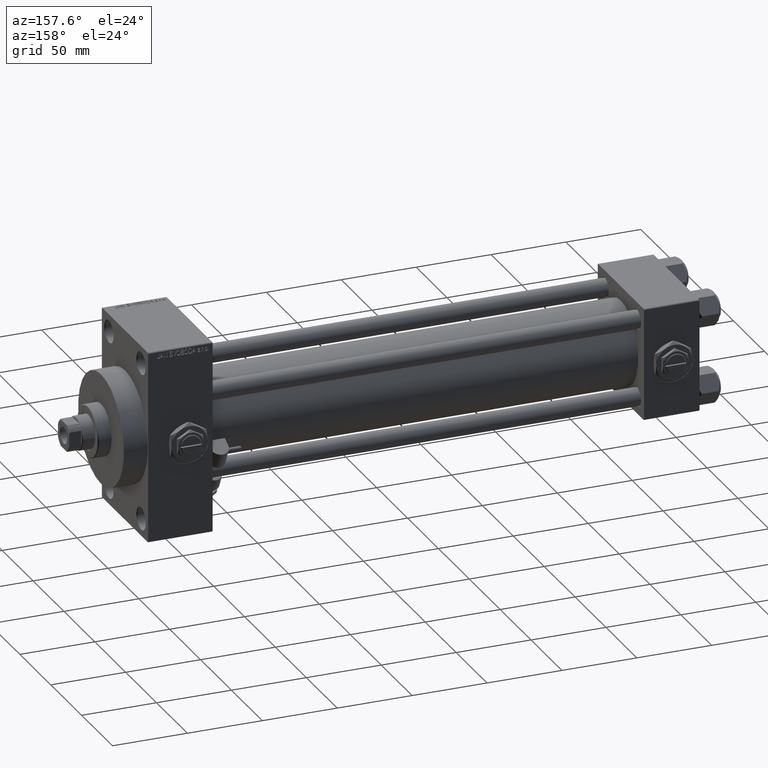
[diagram: clean part render]
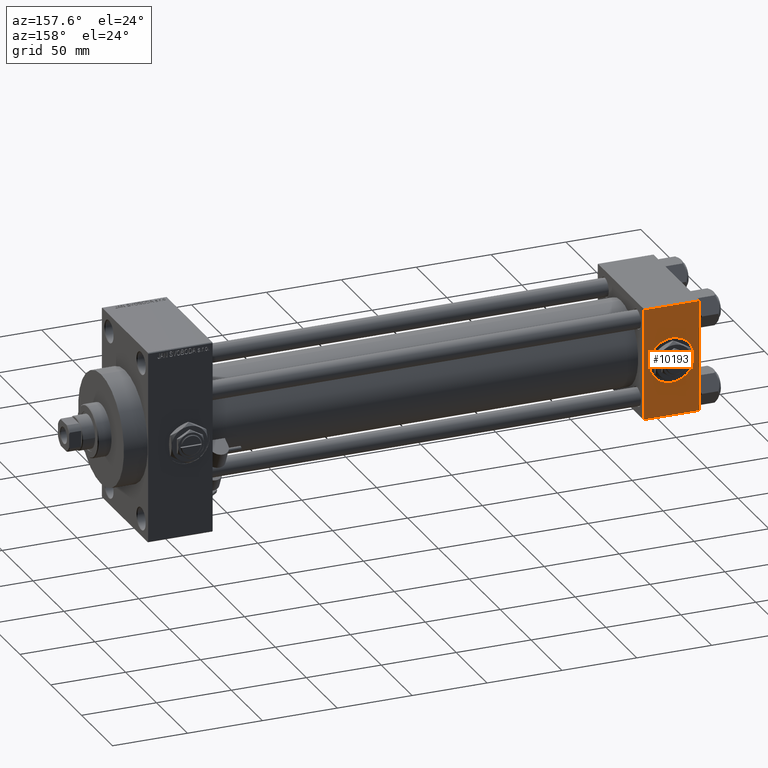
[diagram: same view with one face highlighted and labeled with its STEP entity id]
A machine part, auxiliary view. The second image highlights one B-rep face of the part: STEP entity #10193.
In plain terms, the highlighted planar face has unit normal (0, 1, 0).
Its self-contained STEP definition (entity closure, byte-faithful):
#2202 = CARTESIAN_POINT ( 'NONE',  ( 37.00000000000000000, 37.49999999999999289, -36.99999999999998579 ) ) ;
#3600 = LINE ( 'NONE', #46823, #20524 ) ;
#4257 = PLANE ( 'NONE',  #30876 ) ;
#4542 = CARTESIAN_POINT ( 'NONE',  ( 18.50000000000000355, 37.49999999999999289, -15.00000000000000178 ) ) ;
#4741 = CARTESIAN_POINT ( 'NONE',  ( 37.00000000000000000, 37.49999999999999289, 37.50000000000000000 ) ) ;
#6770 = LINE ( 'NONE', #22775, #7602 ) ;
#6789 = EDGE_CURVE ( 'NONE', #38473, #15437, #38686, .T. ) ;
#7126 = ORIENTED_EDGE ( 'NONE', *, *, #6789, .T. ) ;
#7238 = EDGE_LOOP ( 'NONE', ( #13419, #7126, #37988, #11297 ) ) ;
#7602 = VECTOR ( 'NONE', #14390, 1000.000000000000000 ) ;
#8607 = DIRECTION ( 'NONE',  ( 0.000000000000000000, 0.000000000000000000, 1.000000000000000000 ) ) ;
#10193 = ADVANCED_FACE ( 'NONE', ( #27637, #16682 ), #4257, .T. ) ;
#11297 = ORIENTED_EDGE ( 'NONE', *, *, #20439, .T. ) ;
#11868 = DIRECTION ( 'NONE',  ( 0.000000000000000000, -0.000000000000000000, 1.000000000000000000 ) ) ;
#12437 = VERTEX_POINT ( 'NONE', #49708 ) ;
#13419 = ORIENTED_EDGE ( 'NONE', *, *, #15851, .T. ) ;
#14390 = DIRECTION ( 'NONE',  ( 0.000000000000000000, 0.000000000000000000, -1.000000000000000000 ) ) ;
#15040 = CIRCLE ( 'NONE', #24801, 15.00000000000000178 ) ;
#15437 = VERTEX_POINT ( 'NONE', #26899 ) ;
#15539 = CARTESIAN_POINT ( 'NONE',  ( 18.50000000000000000, 37.49999999999999289, 0.000000000000000000 ) ) ;
#15851 = EDGE_CURVE ( 'NONE', #33200, #38473, #41951, .T. ) ;
#16682 = FACE_OUTER_BOUND ( 'NONE', #7238, .T. ) ;
#20439 = EDGE_CURVE ( 'NONE', #12437, #33200, #3600, .T. ) ;
#20524 = VECTOR ( 'NONE', #27485, 1000.000000000000000 ) ;
#20680 = VERTEX_POINT ( 'NONE', #4542 ) ;
#21505 = EDGE_LOOP ( 'NONE', ( #31155, #29966 ) ) ;
#22775 = CARTESIAN_POINT ( 'NONE',  ( 0.000000000000000000, 37.49999999999999289, 37.50000000000000000 ) ) ;
#24801 = AXIS2_PLACEMENT_3D ( 'NONE', #15539, #41980, #38162 ) ;
#25355 = VECTOR ( 'NONE', #45276, 1000.000000000000000 ) ;
#26187 = EDGE_CURVE ( 'NONE', #39941, #20680, #15040, .T. ) ;
#26899 = CARTESIAN_POINT ( 'NONE',  ( 0.000000000000000000, 37.49999999999999289, -36.99999999999998579 ) ) ;
#27386 = DIRECTION ( 'NONE',  ( -0.000000000000000000, 1.000000000000000000, 0.000000000000000000 ) ) ;
#27484 = DIRECTION ( 'NONE',  ( -1.000000000000000000, 0.000000000000000000, 0.000000000000000000 ) ) ;
#27485 = DIRECTION ( 'NONE',  ( 1.000000000000000000, 0.000000000000000000, 0.000000000000000000 ) ) ;
#27637 = FACE_BOUND ( 'NONE', #21505, .T. ) ;
#27690 = CARTESIAN_POINT ( 'NONE',  ( 18.50000000000000000, 37.49999999999999289, 0.000000000000000000 ) ) ;
#29623 = CIRCLE ( 'NONE', #36105, 15.00000000000000178 ) ;
#29922 = VECTOR ( 'NONE', #27484, 1000.000000000000000 ) ;
#29966 = ORIENTED_EDGE ( 'NONE', *, *, #33142, .F. ) ;
#30022 = CARTESIAN_POINT ( 'NONE',  ( 37.00000000000000000, 37.49999999999999289, 37.50000000000000000 ) ) ;
#30222 = EDGE_CURVE ( 'NONE', #12437, #15437, #6770, .T. ) ;
#30876 = AXIS2_PLACEMENT_3D ( 'NONE', #4741, #27386, #11868 ) ;
#31155 = ORIENTED_EDGE ( 'NONE', *, *, #26187, .F. ) ;
#33142 = EDGE_CURVE ( 'NONE', #20680, #39941, #29623, .T. ) ;
#33200 = VERTEX_POINT ( 'NONE', #41573 ) ;
#35861 = CARTESIAN_POINT ( 'NONE',  ( 37.00000000000000000, 37.49999999999999289, -36.99999999999998579 ) ) ;
#36105 = AXIS2_PLACEMENT_3D ( 'NONE', #27690, #39878, #8607 ) ;
#37988 = ORIENTED_EDGE ( 'NONE', *, *, #30222, .F. ) ;
#38162 = DIRECTION ( 'NONE',  ( 0.000000000000000000, 0.000000000000000000, 1.000000000000000000 ) ) ;
#38473 = VERTEX_POINT ( 'NONE', #2202 ) ;
#38686 = LINE ( 'NONE', #35861, #29922 ) ;
#39878 = DIRECTION ( 'NONE',  ( 0.000000000000000000, 1.000000000000000000, 0.000000000000000000 ) ) ;
#39941 = VERTEX_POINT ( 'NONE', #40484 ) ;
#40484 = CARTESIAN_POINT ( 'NONE',  ( 18.50000000000000000, 37.49999999999999289, 15.00000000000000178 ) ) ;
#41573 = CARTESIAN_POINT ( 'NONE',  ( 37.00000000000000000, 37.49999999999999289, 37.00000000000000000 ) ) ;
#41951 = LINE ( 'NONE', #30022, #25355 ) ;
#41980 = DIRECTION ( 'NONE',  ( 0.000000000000000000, 1.000000000000000000, 0.000000000000000000 ) ) ;
#45276 = DIRECTION ( 'NONE',  ( 0.000000000000000000, 0.000000000000000000, -1.000000000000000000 ) ) ;
#46823 = CARTESIAN_POINT ( 'NONE',  ( 37.00000000000000000, 37.49999999999999289, 37.00000000000000000 ) ) ;
#49708 = CARTESIAN_POINT ( 'NONE',  ( 0.000000000000000000, 37.49999999999999289, 37.00000000000000000 ) ) ;